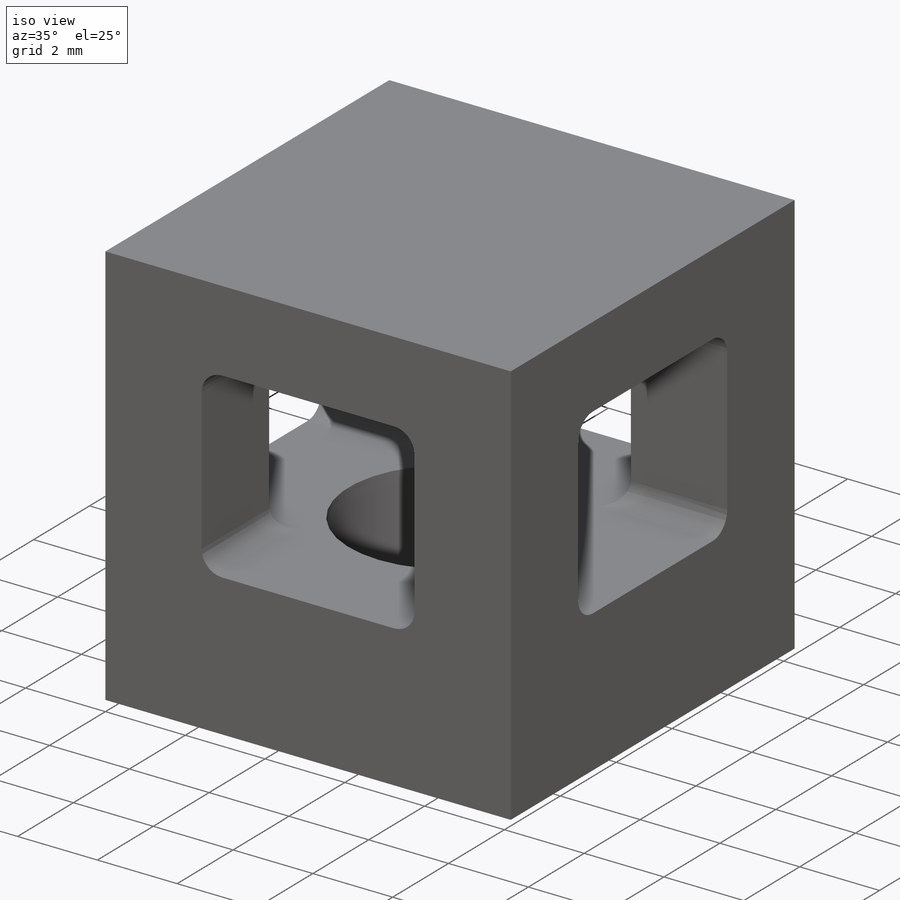
[diagram: iso view]
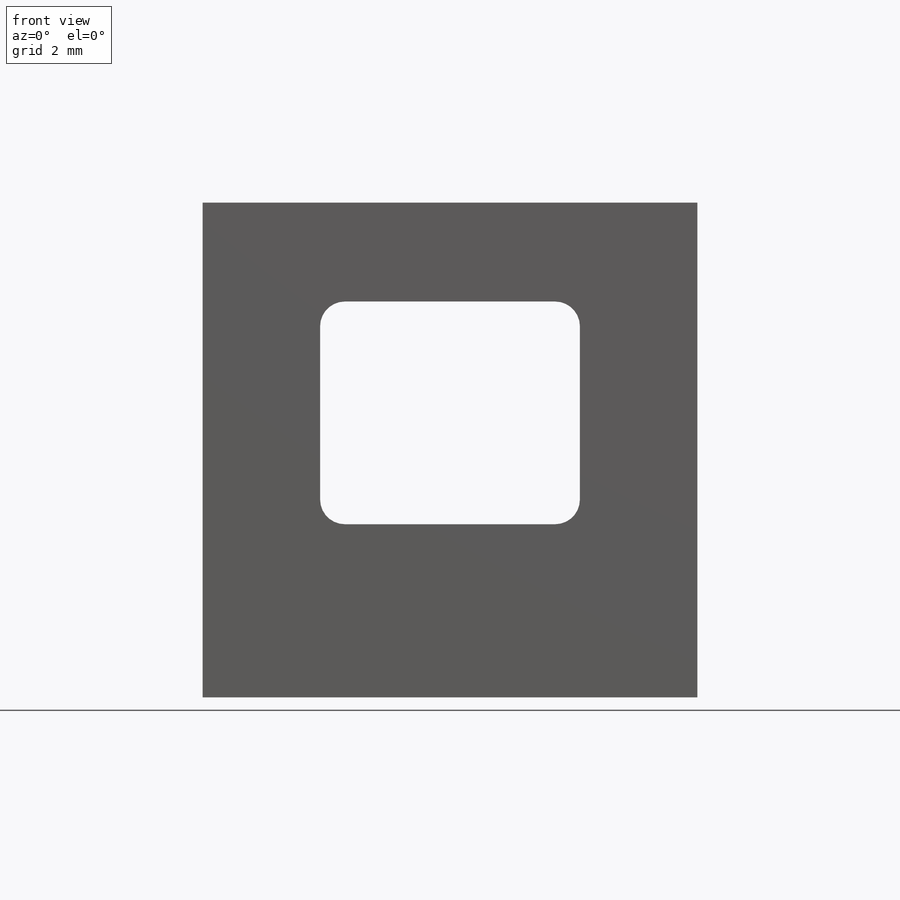
[diagram: front view]
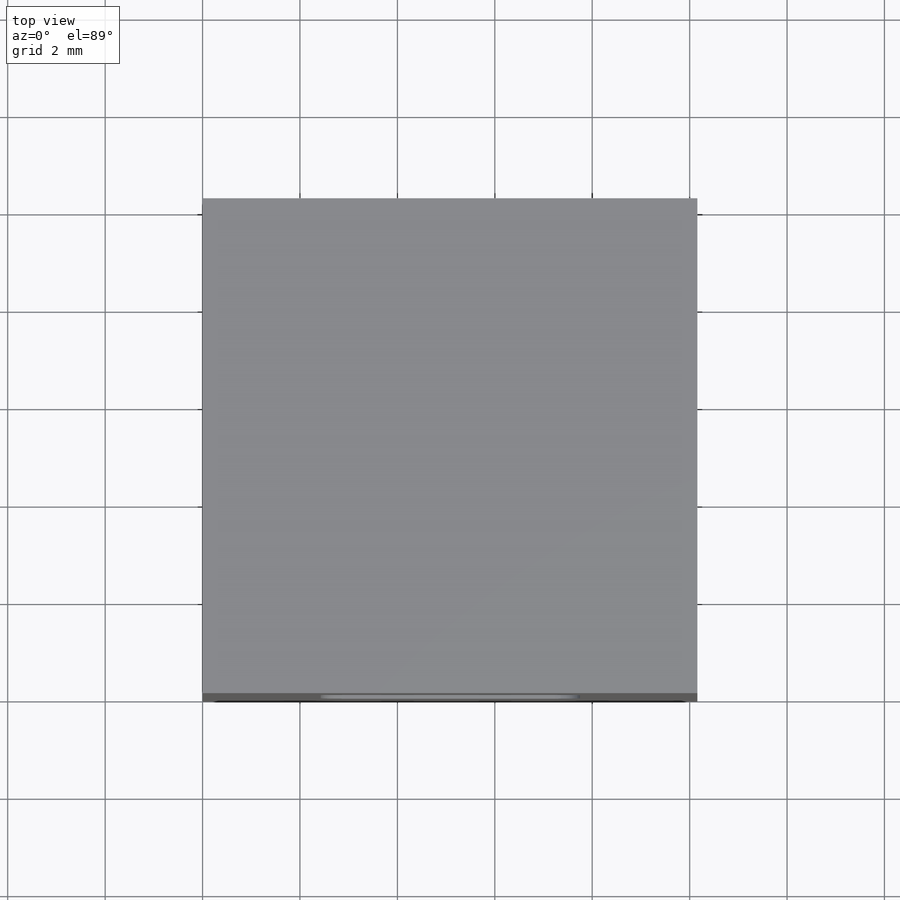
[diagram: top view]
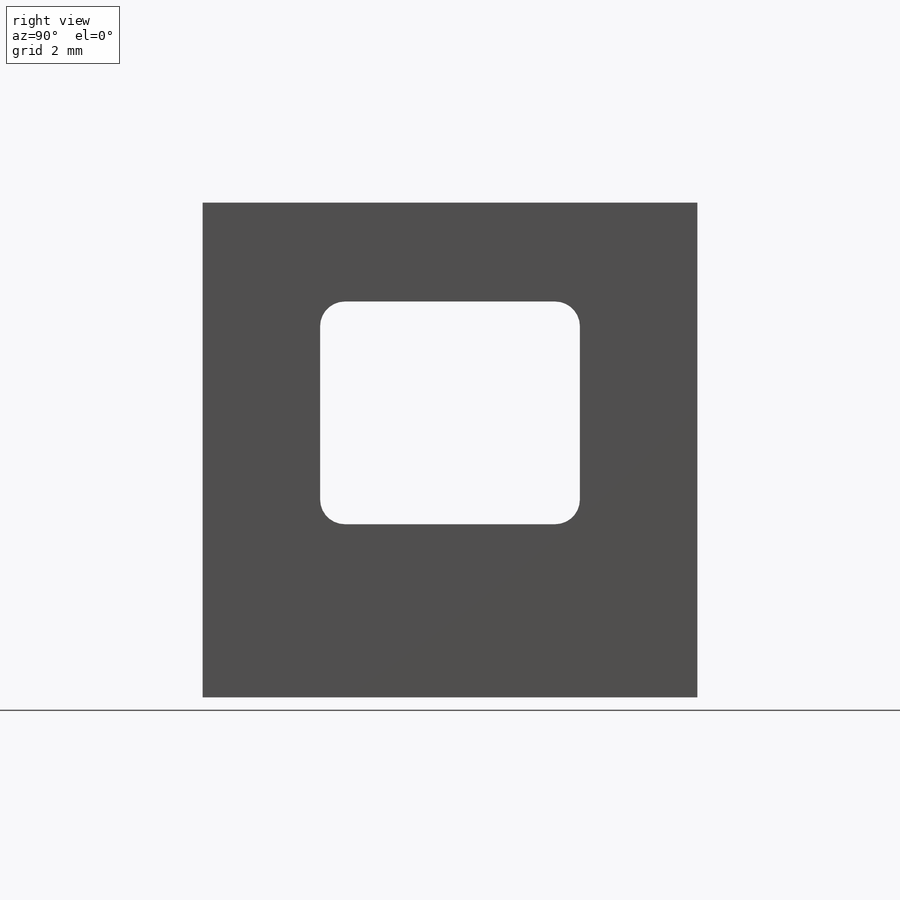
[diagram: right view]
SOLIDWORKS PART (.sldprt)
format: sldprt  version: not decoded by parser v0  size: 204,800 bytes
history: native  units: mm
features: sketch x4, cut_extrude x3, material x1, extrude x1 (+13 scaffold rows collapsed)
feature tree (22):
  scaffold x13  (default folders/planes/origin — collapsed)
  material  "Material <not specified>"
  sketch  "Sketch2"  dims[D1=10.16mm]
  extrude  "Boss-Extrude1"  Depth=10.16mm
  sketch  "Sketch3"  dims[D1=5.08mm]
  cut_extrude  "Cut-Extrude1"  Depth=8.128mm
  sketch  "Sketch4"  dims[c1.D1=0.508mm c1.D2=0.508mm c1.D3=0.508mm c1.D4=0.508mm c1.D5=0.508mm c1.D6=0.508mm c1.D7=0.508mm c1.D8=0.508mm c2.D1=0.0mm c3.D1=~139.793286deg]
  sketch  "Sketch6"  dims[D1=0.508mm D2=0.508mm D3=0.508mm D4=0.508mm]
  cut_extrude  "Cut-Extrude2"  Depth=10.16mm
  cut_extrude  "Cut-Extrude3"  Depth=10.16mm
decode coverage: 8 of 8 modeling features carry decoded parameters
note: ~ marks probable driven/reference dimensions
note: suppression state not decoded; provenance and decode notes live in map.json
